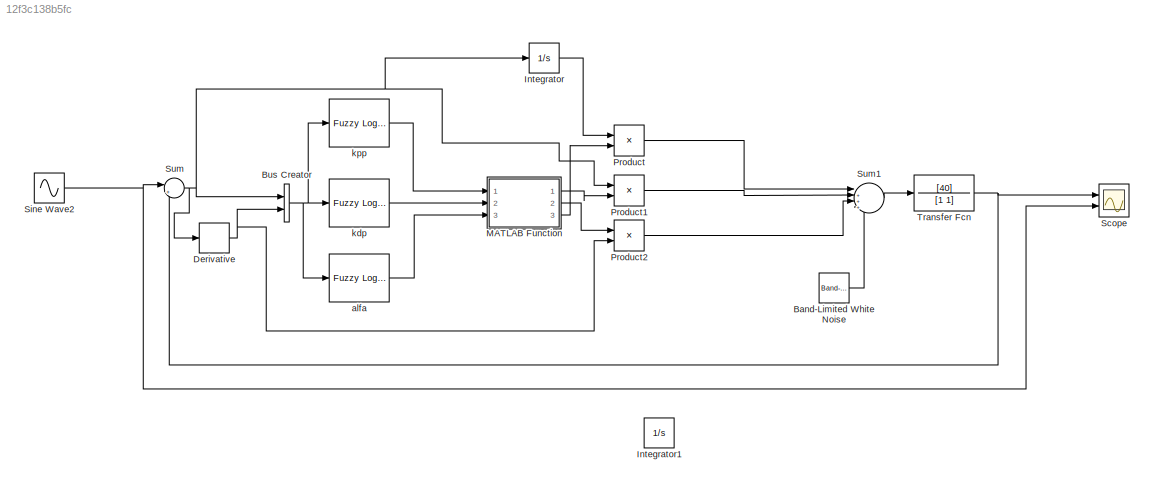
MODEL slx_12f3c138b5fc
KIND model
CONFIG AbsTol = auto
CONFIG EnableMultiTasking = off
CONFIG FixedStep = auto
CONFIG MaxStep = auto
CONFIG MinStep = auto
CONFIG RelTol = 1e-3
CONFIG SampleTimeConstraint = Unconstrained
CONFIG Solver = VariableStepAuto
CONFIG SolverName = VariableStepAuto
CONFIG StartTime = 0.0
CONFIG StopTime = 100.0
BLOCK [Reference] Band-Limited White Noise  REF=simulink/Sources/Band-Limited
White Noise
  Ports = [0, 1]
  SourceBlock = simulink/Sources/Band-Limited\nWhite Noise
  SourceProductBaseCode = SL
  SourceProductName = Simulink
  SourceType = Band-Limited White Noise.
BLOCK [BusCreator] Bus Creator
  DisplayOption = bar
  InheritFromInputs = on
  Inputs = 2
  Ports = [2, 1]
BLOCK [Derivative] Derivative
BLOCK [Integrator] Integrator
  Ports = [1, 1]
BLOCK [Integrator] Integrator1
  Ports = [1, 1]
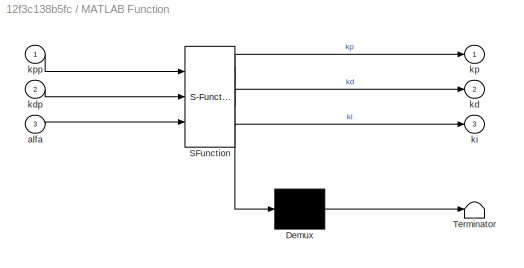
BLOCK [SubSystem] MATLAB Function
  ErrorFcn = Stateflow.Translate.translate
  PermitHierarchicalResolution = ExplicitOnly
  Ports = [3, 3]
  RequestExecContextInheritance = off
  SFBlockType = MATLAB Function
  TreatAsAtomicUnit = on
  Variant = off
BLOCK [Demux] MATLAB Function/ Demux 
  Outputs = 1
  Ports = [1, 1]
BLOCK [S-Function] MATLAB Function/ SFunction 
  EnableBusSupport = on
  FunctionName = sf_sfun
  PortCounts = [3 4]
  Ports = [3, 4]
  SFcnIsStateOwnerBlock = off
  SFunctionDeploymentMode = off
  Tag = Stateflow S-Function FuzzyPID 2
BLOCK [Terminator] MATLAB Function/ Terminator 
BLOCK [Inport] MATLAB Function/alfa
  IconDisplay = Port number
  Port = 3
BLOCK [Outport] MATLAB Function/kd
  IconDisplay = Port number
  Port = 2
BLOCK [Inport] MATLAB Function/kdp
  IconDisplay = Port number
  Port = 2
BLOCK [Outport] MATLAB Function/ki
  IconDisplay = Port number
  Port = 3
BLOCK [Outport] MATLAB Function/kp
  IconDisplay = Port number
BLOCK [Inport] MATLAB Function/kpp
  IconDisplay = Port number
BLOCK [Product] Product
  InputSameDT = off
  OutDataTypeStr = Inherit: Inherit via internal rule
  Ports = [2, 1]
  RndMeth = Floor
  SaturateOnIntegerOverflow = off
BLOCK [Product] Product1
  InputSameDT = off
  OutDataTypeStr = Inherit: Inherit via internal rule
  Ports = [2, 1]
  RndMeth = Floor
  SaturateOnIntegerOverflow = off
BLOCK [Product] Product2
  InputSameDT = off
  OutDataTypeStr = Inherit: Inherit via internal rule
  Ports = [2, 1]
  RndMeth = Floor
  SaturateOnIntegerOverflow = off
BLOCK [Scope] Scope
  NumInputPorts = 2
  Ports = [2]
  ScopeSpecificationString = Simulink.scopes.TimeScopeBlockCfg('CurrentConfiguration', extmgr.ConfigurationSet(extmgr.Configuration('Core','General UI',true),extmgr.Configuration('Core','Source UI',true),extmgr.Configuration('Sources','WiredSimulink',true),extmgr.Configuration('Visuals','Time Domain',true,'SerializedDisplays',{struct('MinYLimReal','-1.15502','MaxYLimReal','1.19938','YLabelReal','','MinYLimMag','0.00000','MaxY...<+1499ch>
BLOCK [Sin] Sine Wave2
  Ports = [0, 1]
  SampleTime = 0
BLOCK [Sum] Sum
  IconShape = round
  InputSameDT = off
  Inputs = |+-
  OutDataTypeStr = Inherit: Inherit via internal rule
  Ports = [2, 1]
  SaturateOnIntegerOverflow = off
BLOCK [Sum] Sum1
  IconShape = round
  InputSameDT = off
  Inputs = |++++
  OutDataTypeStr = Inherit: Inherit via internal rule
  Ports = [4, 1]
  SaturateOnIntegerOverflow = off
BLOCK [TransferFcn] Transfer Fcn
  Denominator = [1 1]
  Numerator = [40]
BLOCK [Reference] alfa  REF=fuzblock/Fuzzy Logic   (lib defined in mdl_858b3b3e7478)
Controller
  Ports = [1, 1]
  SourceBlock = fuzblock/Fuzzy Logic \nController
  SourceProductBaseCode = FL
  SourceProductName = Fuzzy Logic Toolbox
  SourceType = FIS
BLOCK [Reference] kdp  REF=fuzblock/Fuzzy Logic   (lib defined in mdl_858b3b3e7478)
Controller
  Ports = [1, 1]
  SourceBlock = fuzblock/Fuzzy Logic \nController
  SourceProductBaseCode = FL
  SourceProductName = Fuzzy Logic Toolbox
  SourceType = FIS
BLOCK [Reference] kpp  REF=fuzblock/Fuzzy Logic   (lib defined in mdl_858b3b3e7478)
Controller
  Ports = [1, 1]
  SourceBlock = fuzblock/Fuzzy Logic \nController
  SourceProductBaseCode = FL
  SourceProductName = Fuzzy Logic Toolbox
  SourceType = FIS
LINE Band-Limited White Noise:1 -> Sum1:4
NET Bus Creator:1 -> alfa:1, kdp:1, kpp:1
NET Derivative:1 -> Bus Creator:2, Product2:2
LINE Integrator:1 -> Product:1
LINE MATLAB Function:1 -> Product1:2
LINE MATLAB Function:2 -> Product2:1
LINE MATLAB Function:3 -> Product:2
LINE Product1:1 -> Sum1:2
LINE Product2:1 -> Sum1:3
LINE Product:1 -> Sum1:1
NET Sine Wave2:1 -> Scope:2, Sum:1
LINE Sum1:1 -> Transfer Fcn:1
NET Sum:1 -> Bus Creator:1, Derivative:1, Integrator:1, Product1:1
NET Transfer Fcn:1 -> Scope:1, Sum:2
LINE alfa:1 -> MATLAB Function:3
LINE kdp:1 -> MATLAB Function:2
LINE kpp:1 -> MATLAB Function:1
note: NET lines group one-source signal fan-out (src -> all destinations, sorted); 1:1 wires keep LINE
CHART MATLAB Function states=1 transitions=1
  STATE_LABEL 'eML_blk_kernel()'
  STATE_LABEL 'SCRIPT:\nfunction [kp,kd,ki] = fcn(kpp ,kdp,alfa)\n\nkp=1;\nkd=0;\nki=2;\n% kpmin=0;\n% kpmax=5;\n% kdmin=0.01;\n% kdmax=0.05;\n% kp=kpp*(kpmax-kpmin)+kpmin;\n% kd=kdp*(kdmax-kdmin)+kdmin;\n% ki=(kp^2)/(alfa*kd);\n\n% kp=1;\n% kd=0;\n% ki=2;\n% kp = 10 *kpp;\n% kd =10 *kdp +5;\n% ki = (kp^2)/(alfa*kd);\n'
